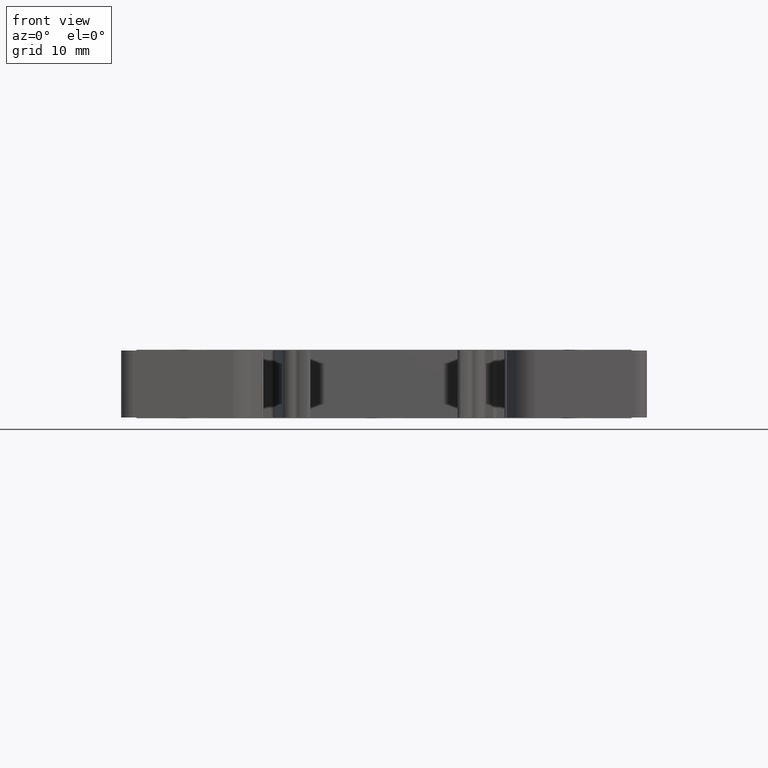
[diagram: clean part render]
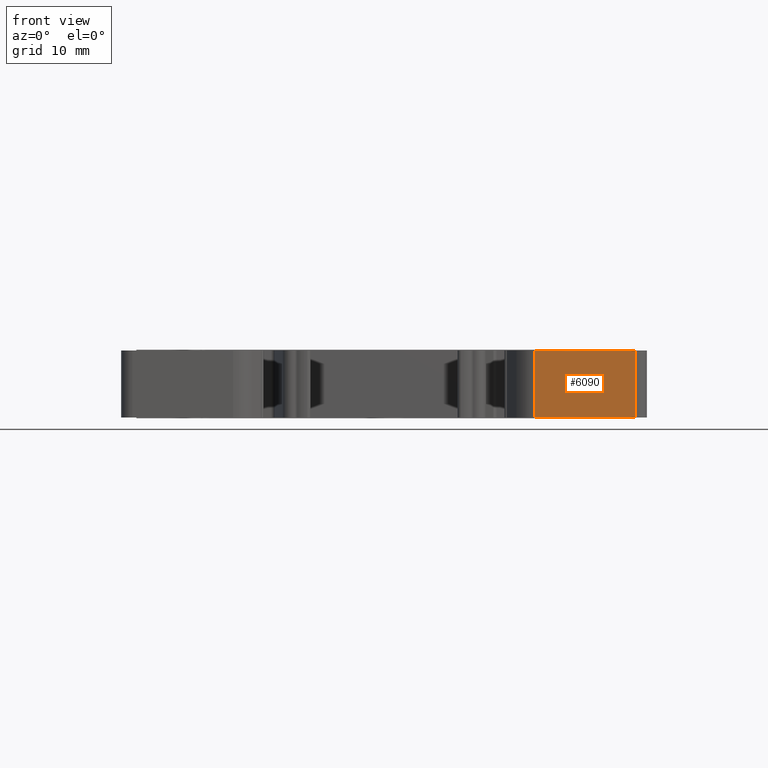
[diagram: same view with one face highlighted and labeled with its STEP entity id]
A machine part, front view. The second image highlights one B-rep face of the part: STEP entity #6090.
In plain terms, the highlighted planar face has unit normal (0, -1, 0).
Its self-contained STEP definition (entity closure, byte-faithful):
#2404 = VECTOR ( 'NONE', #13933, 1000.000000000000000 ) ;
#2467 = VECTOR ( 'NONE', #14176, 1000.000000000000000 ) ;
#2562 = VECTOR ( 'NONE', #14251, 1000.000000000000000 ) ;
#2579 = VECTOR ( 'NONE', #14528, 1000.000000000000000 ) ;
#6090 = ADVANCED_FACE ( 'NONE', ( #18223 ), #18235, .T. ) ;
#6712 = EDGE_CURVE ( 'NONE', #8777, #8797, #13815, .T. ) ;
#6736 = EDGE_CURVE ( 'NONE', #8773, #8764, #14191, .T. ) ;
#6747 = EDGE_CURVE ( 'NONE', #8797, #8773, #14352, .T. ) ;
#6766 = EDGE_CURVE ( 'NONE', #8764, #8777, #14386, .T. ) ;
#8764 = VERTEX_POINT ( 'NONE', #13559 ) ;
#8773 = VERTEX_POINT ( 'NONE', #13521 ) ;
#8777 = VERTEX_POINT ( 'NONE', #13487 ) ;
#8797 = VERTEX_POINT ( 'NONE', #13548 ) ;
#9197 = ORIENTED_EDGE ( 'NONE', *, *, #6766, .T. ) ;
#9198 = ORIENTED_EDGE ( 'NONE', *, *, #6712, .T. ) ;
#9211 = ORIENTED_EDGE ( 'NONE', *, *, #6736, .T. ) ;
#9240 = ORIENTED_EDGE ( 'NONE', *, *, #6747, .T. ) ;
#10655 = EDGE_LOOP ( 'NONE', ( #9198, #9240, #9211, #9197 ) ) ;
#13487 = CARTESIAN_POINT ( 'NONE',  ( 492.0360595966799900, 97.08968781454578300, 27.00000000000000000 ) ) ;
#13521 = CARTESIAN_POINT ( 'NONE',  ( 505.2256107749060400, 97.08968781454578300, 35.79999999999999700 ) ) ;
#13548 = CARTESIAN_POINT ( 'NONE',  ( 505.2256107749060400, 97.08968781454578300, 27.00000000000000000 ) ) ;
#13559 = CARTESIAN_POINT ( 'NONE',  ( 492.0360595966799900, 97.08968781454578300, 35.79999999999999700 ) ) ;
#13815 = LINE ( 'NONE', #13923, #2404 ) ;
#13923 = CARTESIAN_POINT ( 'NONE',  ( 472.2302140059309700, 97.08968781454578300, 27.00000000000000000 ) ) ;
#13933 = DIRECTION ( 'NONE',  ( 1.000000000000000000, 0.0000000000000000000, -0.0000000000000000000 ) ) ;
#14176 = DIRECTION ( 'NONE',  ( -1.000000000000000000, -0.0000000000000000000, -0.0000000000000000000 ) ) ;
#14191 = LINE ( 'NONE', #14197, #2467 ) ;
#14197 = CARTESIAN_POINT ( 'NONE',  ( 472.2302140059309700, 97.08968781454578300, 35.79999999999999700 ) ) ;
#14249 = CARTESIAN_POINT ( 'NONE',  ( 505.2256107749060400, 97.08968781454578300, 35.79999999999999700 ) ) ;
#14251 = DIRECTION ( 'NONE',  ( -0.0000000000000000000, 0.0000000000000000000, 1.000000000000000000 ) ) ;
#14352 = LINE ( 'NONE', #14249, #2562 ) ;
#14386 = LINE ( 'NONE', #14501, #2579 ) ;
#14501 = CARTESIAN_POINT ( 'NONE',  ( 492.0360595966799900, 97.08968781454578300, 35.79999999999999700 ) ) ;
#14528 = DIRECTION ( 'NONE',  ( 0.0000000000000000000, -0.0000000000000000000, -1.000000000000000000 ) ) ;
#18223 = FACE_OUTER_BOUND ( 'NONE', #10655, .T. ) ;
#18235 = PLANE ( 'NONE',  #19595 ) ;
#18236 = DIRECTION ( 'NONE',  ( 0.0000000000000000000, -1.000000000000000000, 0.0000000000000000000 ) ) ;
#18237 = CARTESIAN_POINT ( 'NONE',  ( 472.2302140059309700, 97.08968781454578300, 35.79999999999999700 ) ) ;
#18265 = DIRECTION ( 'NONE',  ( 0.0000000000000000000, -0.0000000000000000000, -1.000000000000000000 ) ) ;
#19595 = AXIS2_PLACEMENT_3D ( 'NONE', #18237, #18236, #18265 ) ;